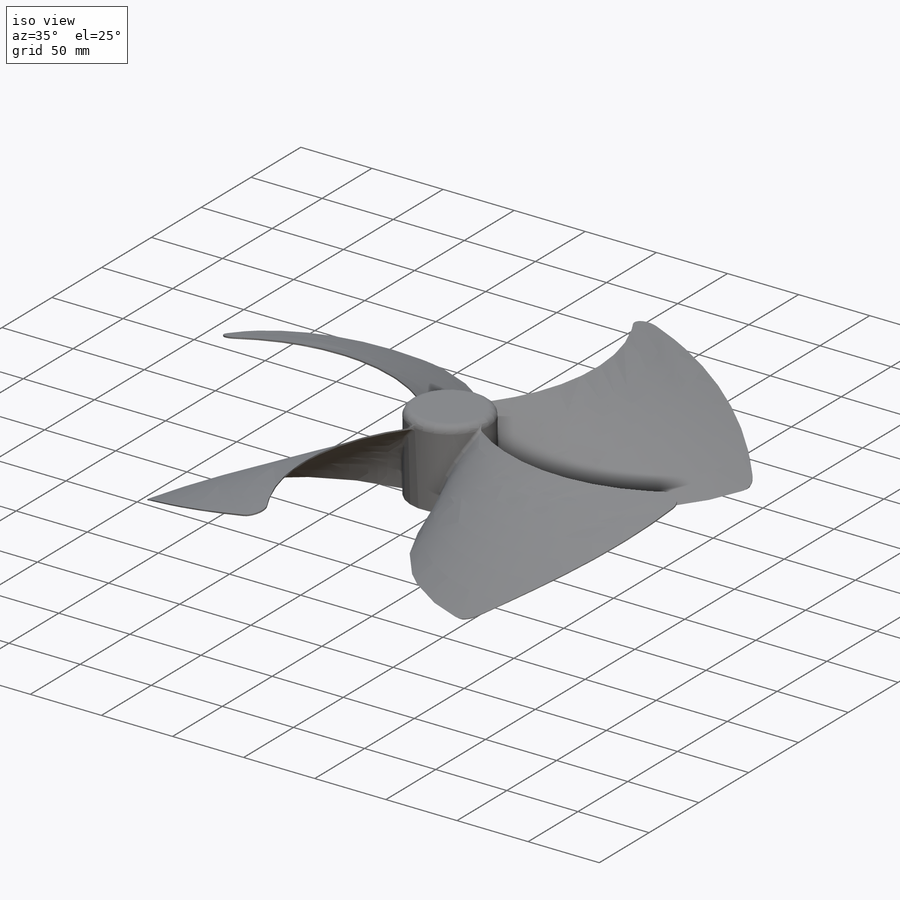
[diagram: iso view]
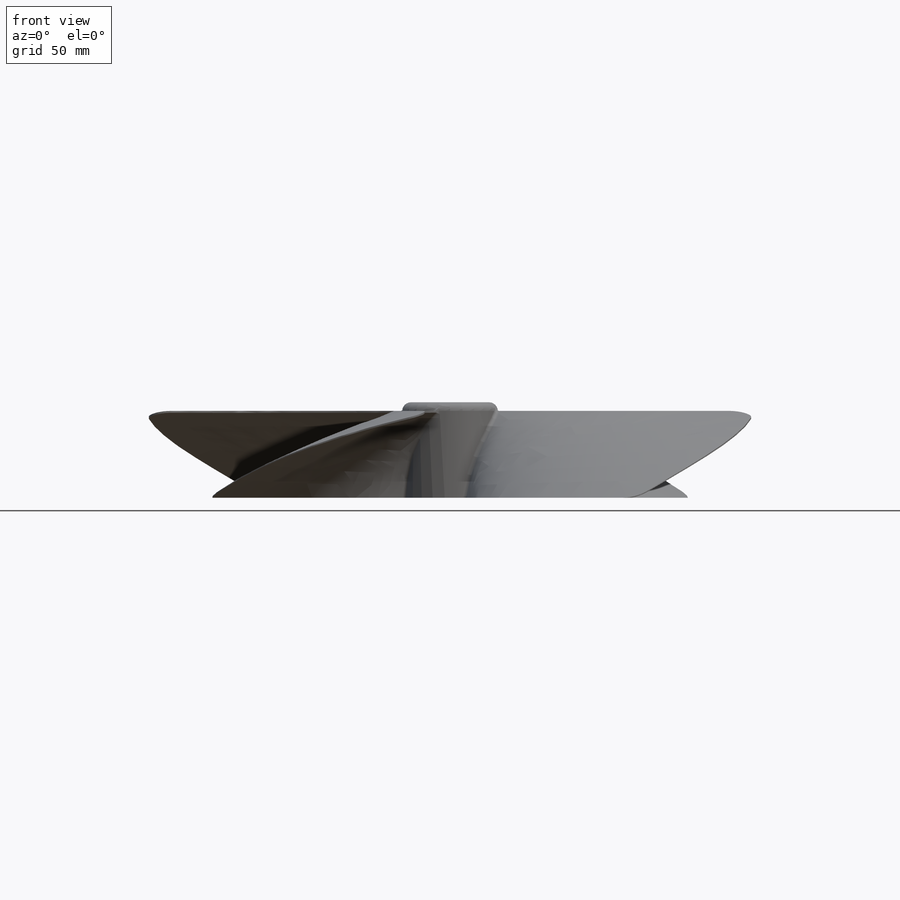
[diagram: front view]
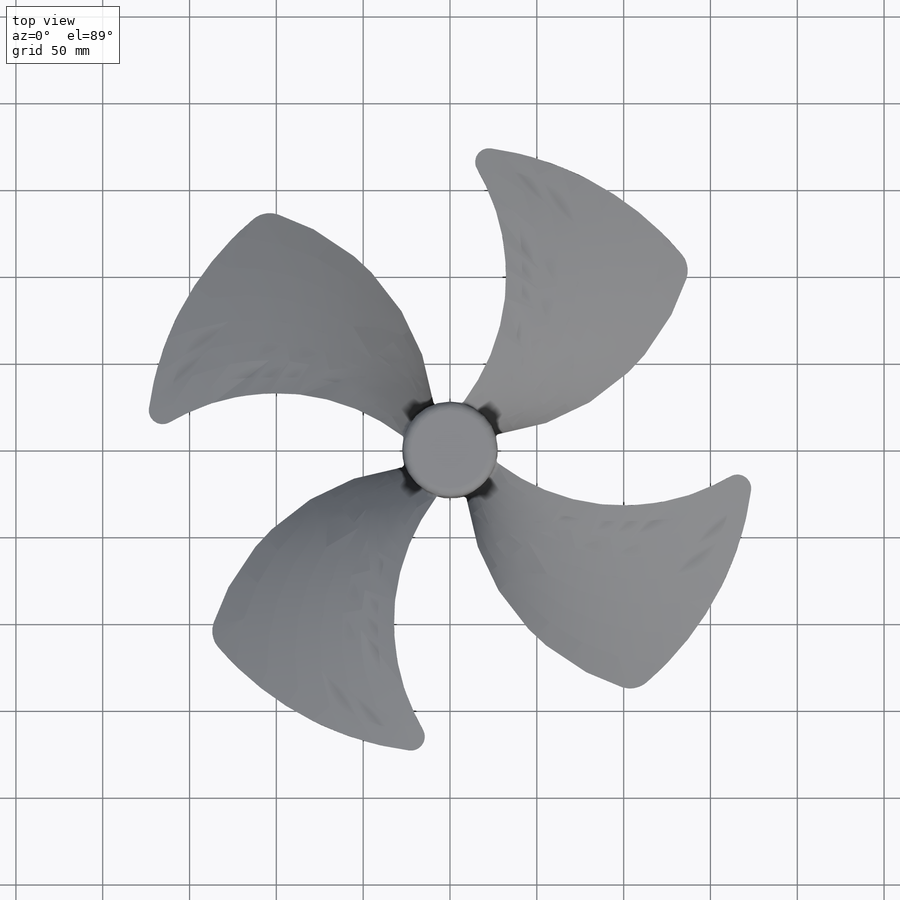
[diagram: top view]
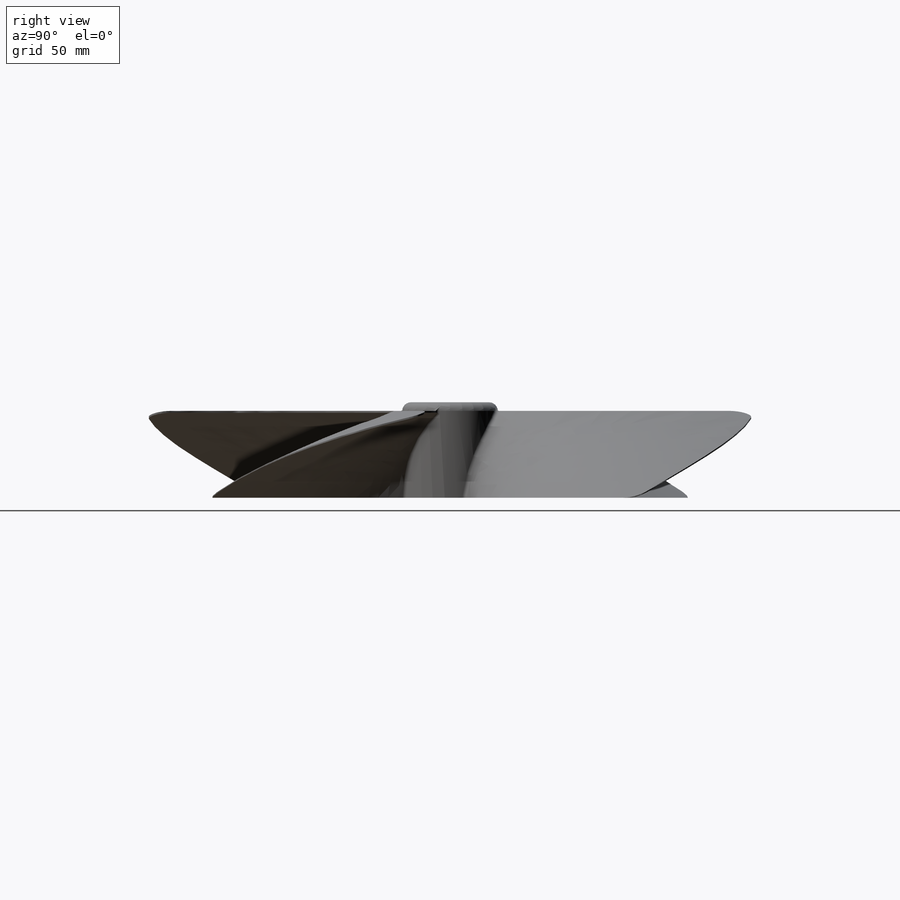
[diagram: right view]
SOLIDWORKS PART (.sldprt)
format: sldprt  version: not decoded by parser v0  size: 728,064 bytes
history: native  units: mm
features: material x9, cut_extrude x2, fillet x2, sketch x1, extrude x1, pattern_circular x1, boolean_combine x1 (+15 scaffold rows collapsed)
feature tree (32):
  scaffold x15  (default folders/planes/origin — collapsed)
  material  "Material <not specified>"
  material  "Inner Profile"
  material  "Outer Profile"
  material  "Lower Guide"
  material  "Upper Guide"
  material  "Edge Cut"
  material  "Hub"
  material  "Axis"
  material  "Key Way"
  sketch  "Rough Profile"  dims[c1.D1=350.0mm c1.D2=55.0mm c2.D1=55.0mm c2.D2=350.0mm c2.D7=8.0mm c2.D8=120.0mm c2.D9=130.0mm c2.D10=15.0mm c2.D13=8.0mm c2.D3=27.5mm c3.D3=35.0deg c3.D4=27.5mm c4.D4=85.0deg c4.D5=27.5mm c5.D5=20.0deg c5.D6=27.5mm c6.D6=75.0deg c6.D13=~74.072864mm c7.D13=90.0deg c8.D13=16.0mm c8.D11=2.0mm c8.D12=13.0mm]
  cut_extrude  "Cut-Extrude2"  Depth=60mm
  extrude  "Boss-Extrude1"  Depth=55mm
  pattern_circular  "CirPattern1"  Count=4 Angle=360deg
  boolean_combine  "Combine1"
  fillet  "Hub Fillet"  Radius=5mm
  fillet  "Fillet2"  Radius=2mm
  cut_extrude  "Cut-Extrude3"  Depth=15mm
decode coverage: 7 of 8 modeling features carry decoded parameters
note: ~ marks probable driven/reference dimensions
note: suppression state not decoded; provenance and decode notes live in map.json
